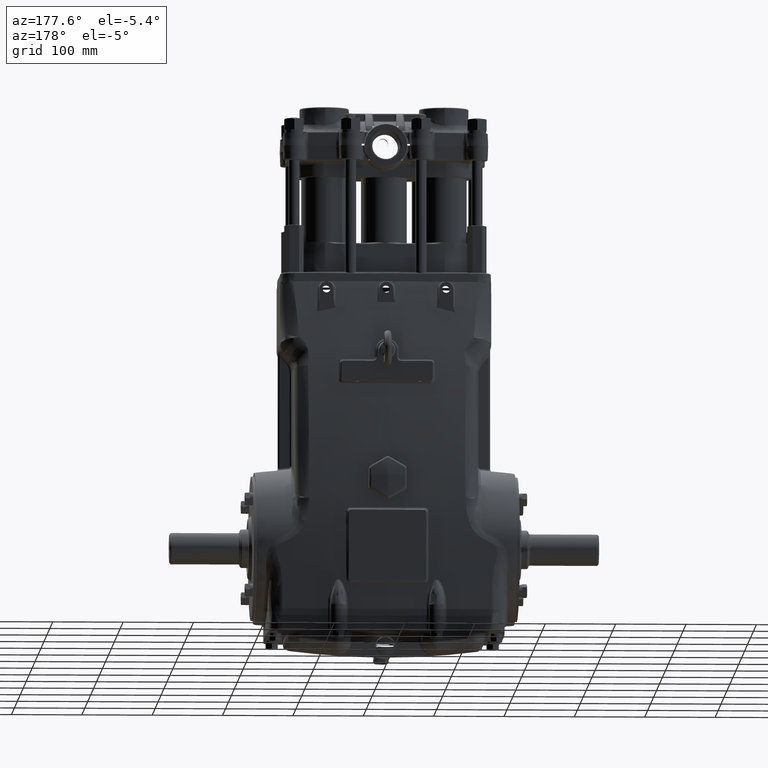
[diagram: clean part render]
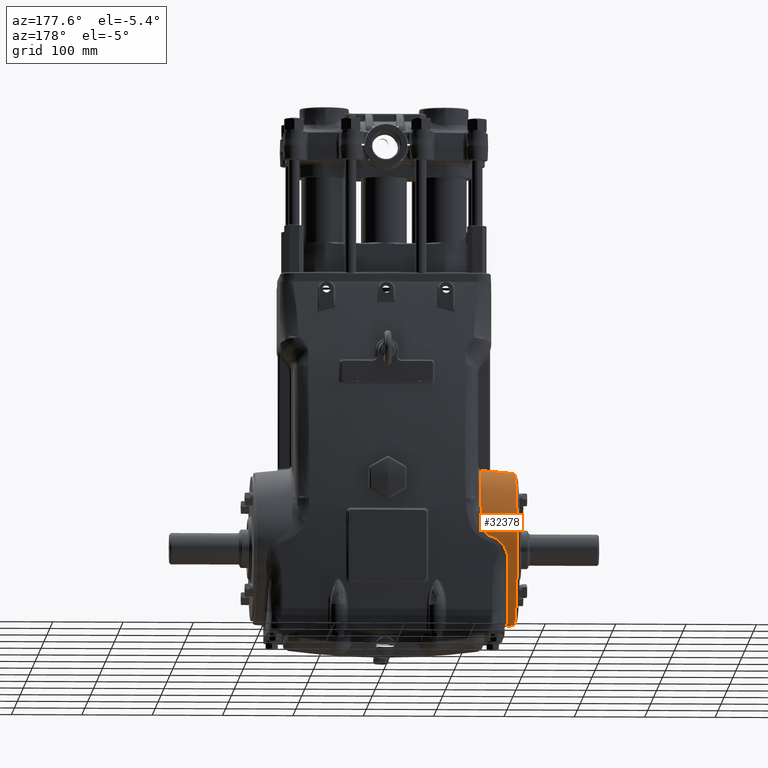
[diagram: same view with one face highlighted and labeled with its STEP entity id]
A machine part, auxiliary view. The second image highlights one B-rep face of the part: STEP entity #32378.
In plain terms, the highlighted toroidal blend (fillet) surface has major radius 1682.47 mm and minor (blend) radius 1800 mm.
Its self-contained STEP definition (entity closure, byte-faithful):
#96 = CARTESIAN_POINT ( 'NONE',  ( -6.741345395593511647, 3.917693780155291794, -1.786689214462458652 ) ) ;
#136 = CARTESIAN_POINT ( 'NONE',  ( -5.261296828898087696, 3.900253370087860549, 2.104232054173381883 ) ) ;
#139 = VERTEX_POINT ( 'NONE', #95118 ) ;
#399 = CARTESIAN_POINT ( 'NONE',  ( -6.802928794494061293, 2.971965742435886071, -3.107775869320155593 ) ) ;
#460 = EDGE_CURVE ( 'NONE', #79566, #37249, #105377, .T. ) ;
#1250 = EDGE_CURVE ( 'NONE', #76479, #39413, #63874, .T. ) ;
#1544 = EDGE_CURVE ( 'NONE', #13216, #79566, #74947, .T. ) ;
#2035 = CARTESIAN_POINT ( 'NONE',  ( -5.588538660406701553, 4.382084385623080891, 0.4637048666681909403 ) ) ;
#2651 = CARTESIAN_POINT ( 'NONE',  ( -6.808755107570218179, 2.840646696900647861, -3.227320686454763443 ) ) ;
#3227 = CARTESIAN_POINT ( 'NONE',  ( -6.840394268254330612, 1.986708291382229596, -3.809402521445148793 ) ) ;
#3786 = CARTESIAN_POINT ( 'NONE',  ( -6.815687386985334051, 2.681522705761757663, -3.366223835221867411 ) ) ;
#3798 = CARTESIAN_POINT ( 'NONE',  ( -5.942635652879795671, 0.1919905828848696705, 4.373438795348450370 ) ) ;
#4304 = CARTESIAN_POINT ( 'NONE',  ( -5.280303821004435072, 4.326378264212825897, 0.9538605531171466811 ) ) ;
#4523 = CARTESIAN_POINT ( 'NONE',  ( -5.316003471564444638, 2.863135012389899536, 3.377342728480050127 ) ) ;
#4530 = CARTESIAN_POINT ( 'NONE',  ( -5.307508751736770947, 4.032365907415967676, 1.830081350043917032 ) ) ;
#4948 = CARTESIAN_POINT ( 'NONE',  ( -5.975618015182228682, 0.1682595571254062172, 4.371633694745659326 ) ) ;
#5262 = EDGE_LOOP ( 'NONE', ( #92596, #56155, #36539, #76598, #54295, #16949, #39816, #105467, #53395, #14919, #17673, #15793, #23272 ) ) ;
#5503 = CARTESIAN_POINT ( 'NONE',  ( -6.004155115772660700, 0.1387479897824969721, 4.370251600946961190 ) ) ;
#5507 = CARTESIAN_POINT ( 'NONE',  ( -6.870678561281842178, -6.656114456696553760E-06, -4.293398809821471929 ) ) ;
#5660 = AXIS2_PLACEMENT_3D ( 'NONE', #69511, #86224, #24009 ) ;
#5684 = CARTESIAN_POINT ( 'NONE',  ( -6.621719681679494762, 4.302354095691322655, -0.3578070606761745154 ) ) ;
#5858 = CARTESIAN_POINT ( 'NONE',  ( -5.282505151415223033, 3.545487945610408698, 2.656169669592979066 ) ) ;
#5891 = CARTESIAN_POINT ( 'NONE',  ( -6.771812179472230575, 4.157937463143076329, -1.109292408604076963 ) ) ;
#6210 = CARTESIAN_POINT ( 'NONE',  ( -5.377417702662543597, 0.4328440250592755500, 4.404250687754294624 ) ) ;
#7030 = CARTESIAN_POINT ( 'NONE',  ( -6.769494317236484981, 4.064795517057750551, -1.412378850890094295 ) ) ;
#7671 = DIRECTION ( 'NONE',  ( 1.000000000000000000, -0.000000000000000000, -0.000000000000000000 ) ) ;
#7964 = CARTESIAN_POINT ( 'NONE',  ( -6.320352504069026267, 4.344609826187327606, 0.04931440882356356165 ) ) ;
#8482 = CARTESIAN_POINT ( 'NONE',  ( -6.799597551736995094, 3.045065717738041133, -3.037207550370868425 ) ) ;
#8744 = CARTESIAN_POINT ( 'NONE',  ( -6.741552316830912162, 3.918775905409434213, -1.784267334145855255 ) ) ;
#8784 = CARTESIAN_POINT ( 'NONE',  ( -5.248186104969128074, 3.854023521318289180, 2.189869658242950656 ) ) ;
#8856 = DIRECTION ( 'NONE',  ( 1.000000000000000000, -0.000000000000000000, -0.000000000000000000 ) ) ;
#9755 = EDGE_CURVE ( 'NONE', #77648, #57521, #37989, .T. ) ;
#9860 = CARTESIAN_POINT ( 'NONE',  ( -6.756940503989800284, 3.996227088444455511, -1.599345310914938478 ) ) ;
#10725 = CARTESIAN_POINT ( 'NONE',  ( -6.808813497787673086, 2.839307107801701147, -3.228491450289571851 ) ) ;
#11240 = CARTESIAN_POINT ( 'NONE',  ( -5.283149141785619562, 4.329727526644165714, 0.9374360386467381900 ) ) ;
#11807 = CARTESIAN_POINT ( 'NONE',  ( -5.337403129142995084, 4.359404833277299218, 0.7650055225681851034 ) ) ;
#12375 = CARTESIAN_POINT ( 'NONE',  ( -5.516449093550831684, 4.381192923055855282, 0.5225526090988370509 ) ) ;
#12430 = CARTESIAN_POINT ( 'NONE',  ( -6.840321596742385601, 1.989090227306609782, -3.808167506888255449 ) ) ;
#12586 = CARTESIAN_POINT ( 'NONE',  ( -5.348683019767731750, 1.982253664410537519, 3.956300282451850503 ) ) ;
#13216 = VERTEX_POINT ( 'NONE', #81989 ) ;
#13389 = CARTESIAN_POINT ( 'NONE',  ( -6.766576386210667593, 4.045720627320530838, -1.467316562281252290 ) ) ;
#13722 = CARTESIAN_POINT ( 'NONE',  ( -5.303912266008377507, 3.137022981449896886, 3.141800864877679178 ) ) ;
#14299 = CARTESIAN_POINT ( 'NONE',  ( -5.353408809050346662, 1.821024108091647387, 4.033552500093756876 ) ) ;
#14531 = CARTESIAN_POINT ( 'NONE',  ( -6.762294523000383251, 4.022776607541421967, -1.530005080212360369 ) ) ;
#14919 = ORIENTED_EDGE ( 'NONE', *, *, #47915, .T. ) ;
#15093 = CARTESIAN_POINT ( 'NONE',  ( -6.769435883761134143, 4.064372363364833873, -1.413613015453675903 ) ) ;
#15135 = CARTESIAN_POINT ( 'NONE',  ( -5.244267370248267390, 3.830823330227710155, 2.230641275186715955 ) ) ;
#15446 = CARTESIAN_POINT ( 'NONE',  ( -6.620543918417818752, 4.302667728226239774, -0.3553585475959106788 ) ) ;
#15656 = CARTESIAN_POINT ( 'NONE',  ( -6.730461151574938405, 4.248999225761306953, -0.7039455839795005776 ) ) ;
#15764 = CARTESIAN_POINT ( 'NONE',  ( -5.694718666316944677, 0.2427046293452805592, 4.391591325424922587 ) ) ;
#15793 = ORIENTED_EDGE ( 'NONE', *, *, #91973, .T. ) ;
#16949 = ORIENTED_EDGE ( 'NONE', *, *, #1250, .T. ) ;
#17164 = CARTESIAN_POINT ( 'NONE',  ( -6.775298839652080574, 3.525166211466904898, -2.466938101616775292 ) ) ;
#17289 = EDGE_CURVE ( 'NONE', #33126, #66932, #77248, .T. ) ;
#17673 = ORIENTED_EDGE ( 'NONE', *, *, #38846, .T. ) ;
#17681 = CARTESIAN_POINT ( 'NONE',  ( -6.780474569964128229, 3.430225951759014791, -2.597042137997517930 ) ) ;
#17976 = CARTESIAN_POINT ( 'NONE',  ( -5.292905074866959936, 3.987815863200710353, 1.927913861091739234 ) ) ;
#18229 = CARTESIAN_POINT ( 'NONE',  ( -6.807807539690285736, 2.862328164259755336, -3.208253096050032394 ) ) ;
#18291 = CARTESIAN_POINT ( 'NONE',  ( -6.761142280871498045, 3.657529469068581562, -2.272160746277245735 ) ) ;
#18604 = EDGE_CURVE ( 'NONE', #34690, #22412, #101344, .T. ) ;
#19089 = CARTESIAN_POINT ( 'NONE',  ( -5.298939793779235963, 4.004695324892235675, 1.891693378475712395 ) ) ;
#19296 = CARTESIAN_POINT ( 'NONE',  ( -5.391722294753668265, 4.370942191345903893, 0.6690100046763898245 ) ) ;
#20436 = CARTESIAN_POINT ( 'NONE',  ( -5.285594249401850853, 4.270207403757702025, 1.178562820172817327 ) ) ;
#20484 = CARTESIAN_POINT ( 'NONE',  ( -6.840365213773861974, 1.987660837015395643, -3.808908769402320260 ) ) ;
#21040 = CARTESIAN_POINT ( 'NONE',  ( -6.808852441304065195, 2.838413506817393905, -3.229272106477580895 ) ) ;
#21214 = CARTESIAN_POINT ( 'NONE',  ( -5.364720556103168114, 1.356356683483980197, 4.213923273269347014 ) ) ;
#21564 = CARTESIAN_POINT ( 'NONE',  ( -5.420970511966699767, 4.375292211056715175, 0.6255213099475080973 ) ) ;
#21619 = CARTESIAN_POINT ( 'NONE',  ( -6.840219576493484333, 1.992429470634330624, -3.806433447973351480 ) ) ;
#22214 = B_SPLINE_CURVE_WITH_KNOTS ( 'NONE', 3,
 ( #43001, #104730, #25763, #17681, #96076, #79323, #35494, #87426, #8482, #399, #70675, #105853, #26896, #18229, #88558, #65406, #2651, #10725, #21040, #107540, #3786, #56170, #30815, #29131, #64264, #91380, #45824, #81579, #54482, #99461, #21619, #12430, #20484, #3227, #81020, #100607, #38321, #82154, #30245, #55599, #100021, #63703, #28581, #90807, #73507, #56730, #47521, #91939 ),
 .UNSPECIFIED., .F., .F.,
 ( 4, 2, 2, 2, 2, 2, 1, 1, 1, 1, 1, 2, 2, 2, 2, 2, 1, 1, 1, 1, 1, 2, 2, 2, 2, 2, 2, 2, 4 ),
 ( 0.000000000000000000, 0.03125434642921768452, 0.06250869285843536904, 0.09376303928765304663, 0.1093902125022618299, 0.1172037991095663118, 0.1211105924132185596, 0.1230639890650446766, 0.1240406873909577351, 0.1245290365539142435, 0.1247732111353924978, 0.1248952984261315763, 0.1250173857168706826, 0.1875260785752407566, 0.2187804250044258492, 0.2344075982190182983, 0.2422211848263145229, 0.2461279781299626768, 0.2480813747817867121, 0.2490580731076987298, 0.2495464222706547941, 0.2497905968521327569, 0.2500347714336107474, 0.3125434642919709405, 0.3750521571503311336, 0.4375608500086913266, 0.4688151964378713954, 0.4844423696524615131, 0.5000695428670515197 ),
 .UNSPECIFIED. ) ;
#22343 = DIRECTION ( 'NONE',  ( 0.000000000000000000, 0.000000000000000000, -1.000000000000000000 ) ) ;
#22359 = CARTESIAN_POINT ( 'NONE',  ( -5.350632992231451723, 1.916930647889112604, 3.988252961326844037 ) ) ;
#22412 = VERTEX_POINT ( 'NONE', #50056 ) ;
#22595 = CARTESIAN_POINT ( 'NONE',  ( -6.768301578327605483, 4.173608857470652467, -1.048499417060824168 ) ) ;
#22744 = CARTESIAN_POINT ( 'NONE',  ( -5.844200593887214801, 4.373259864796655627, 0.3322135055685635496 ) ) ;
#23272 = ORIENTED_EDGE ( 'NONE', *, *, #9755, .F. ) ;
#23745 = CARTESIAN_POINT ( 'NONE',  ( -6.763767006059699050, 4.190022076853849420, -0.9828676802541481683 ) ) ;
#23783 = CARTESIAN_POINT ( 'NONE',  ( -5.248966763422030724, 3.757830948074233124, 2.350867164115806762 ) ) ;
#24009 = DIRECTION ( 'NONE',  ( 0.000000000000000000, 1.224646799147353207E-16, 1.000000000000000000 ) ) ;
#24355 = CARTESIAN_POINT ( 'NONE',  ( -5.262340482072752401, 3.903419070440504957, 2.098184948024498730 ) ) ;
#24423 = FACE_OUTER_BOUND ( 'NONE', #5262, .T. ) ;
#25244 = CARTESIAN_POINT ( 'NONE',  ( -6.253900897241322809, 4.349597401975684896, 0.1086126833368276090 ) ) ;
#25454 = CARTESIAN_POINT ( 'NONE',  ( -6.741304003182745141, 3.917477216550578678, -1.787173529835899499 ) ) ;
#25763 = CARTESIAN_POINT ( 'NONE',  ( -6.777065526427530351, 3.493068600585554684, -2.512442743415792545 ) ) ;
#25818 = CARTESIAN_POINT ( 'NONE',  ( -6.675732707737997984, 4.287845143048916619, -0.4708184384520080479 ) ) ;
#26587 = CARTESIAN_POINT ( 'NONE',  ( -6.741289634994213742, 3.917402036700062151, -1.787341636244538234 ) ) ;
#26896 = CARTESIAN_POINT ( 'NONE',  ( -6.806738637011758186, 2.886655789550812479, -3.186590986991063801 ) ) ;
#27202 = CARTESIAN_POINT ( 'NONE',  ( -5.284239344929683391, 3.965186074144665174, 1.975326668870498903 ) ) ;
#27270 = DIRECTION ( 'NONE',  ( 0.000000000000000000, 0.000000000000000000, -1.000000000000000000 ) ) ;
#27962 = CARTESIAN_POINT ( 'NONE',  ( -5.589810699308505271, 4.382081984448547018, 0.4627701894666591542 ) ) ;
#28294 = EDGE_CURVE ( 'NONE', #77648, #34690, #106835, .T. ) ;
#28581 = CARTESIAN_POINT ( 'NONE',  ( -6.869890758678623754, 0.3194442901638384624, -4.282333702572814538 ) ) ;
#29078 = CARTESIAN_POINT ( 'NONE',  ( -5.573955626785884299, 4.382076247098126487, 0.4746297706762793722 ) ) ;
#29131 = CARTESIAN_POINT ( 'NONE',  ( -6.832033164446256635, 2.244276316579895347, -3.665341119609889287 ) ) ;
#29631 = CARTESIAN_POINT ( 'NONE',  ( -5.372798435690252283, 4.367762196757864146, 0.6987752988529659648 ) ) ;
#29692 = CARTESIAN_POINT ( 'NONE',  ( -5.985768041256679162, 0.1589629006822737278, 4.371125094206695039 ) ) ;
#30245 = CARTESIAN_POINT ( 'NONE',  ( -6.860594391852364637, 1.147408376280117714, -4.141825173020047934 ) ) ;
#30415 = CARTESIAN_POINT ( 'NONE',  ( -5.318341447129883548, 2.809251828563186226, 3.422009701186613295 ) ) ;
#30421 = CARTESIAN_POINT ( 'NONE',  ( -5.305074006109198770, 4.024108979596778823, 1.848678937366626807 ) ) ;
#30815 = CARTESIAN_POINT ( 'NONE',  ( -6.829598149745276459, 2.313787734814085173, -3.622339465245685730 ) ) ;
#30978 = CARTESIAN_POINT ( 'NONE',  ( -5.293242435950135771, 3.354855560971719441, 2.909289479409654433 ) ) ;
#31393 = CARTESIAN_POINT ( 'NONE',  ( -6.052903952729665527, 0.01359502265603423563, 4.368279199505267663 ) ) ;
#31775 = CARTESIAN_POINT ( 'NONE',  ( -6.769575550329589575, 4.065387223735250188, -1.410651506330780736 ) ) ;
#32356 = CARTESIAN_POINT ( 'NONE',  ( -6.768448550204643865, 4.172961754324505002, -1.051014193066587943 ) ) ;
#32378 = ADVANCED_FACE ( 'NONE', ( #24423 ), #65404, .T. ) ;
#32682 = CARTESIAN_POINT ( 'NONE',  ( -5.349139269623838899, 1.967170095378494077, 3.963789496042168015 ) ) ;
#33126 = VERTEX_POINT ( 'NONE', #46499 ) ;
#33274 = CARTESIAN_POINT ( 'NONE',  ( -6.551118807502451347, 4.317803168248316226, -0.2289998349564659197 ) ) ;
#34100 = CARTESIAN_POINT ( 'NONE',  ( -5.242952442699188254, 3.817034596398841462, 2.254355011008818632 ) ) ;
#34302 = CARTESIAN_POINT ( 'NONE',  ( -7.283464566929135131, 0.000000000000000000, -4.251968503937008315 ) ) ;
#34416 = CARTESIAN_POINT ( 'NONE',  ( -6.619343310566139671, 4.302986275873823097, -0.3528672802395221852 ) ) ;
#34690 = VERTEX_POINT ( 'NONE', #102661 ) ;
#35198 = CARTESIAN_POINT ( 'NONE',  ( -6.731844506270565631, 3.780018725156358173, -2.065150532387148630 ) ) ;
#35233 = CARTESIAN_POINT ( 'NONE',  ( -5.263139523889131866, 3.905814407568594770, 2.093595139299669672 ) ) ;
#35494 = CARTESIAN_POINT ( 'NONE',  ( -6.791672193843124816, 3.212435705296017296, -2.862417719782662573 ) ) ;
#35754 = CARTESIAN_POINT ( 'NONE',  ( -6.756993317447060221, 3.996482444427015501, -1.598693524026935986 ) ) ;
#36539 = ORIENTED_EDGE ( 'NONE', *, *, #88688, .T. ) ;
#37249 = VERTEX_POINT ( 'NONE', #65860 ) ;
#37989 = CIRCLE ( 'NONE', #100647, 70.86614173228348079 ) ;
#38321 = CARTESIAN_POINT ( 'NONE',  ( -6.849879752958772272, 1.652454870743574222, -3.968894505587415189 ) ) ;
#38846 = EDGE_CURVE ( 'NONE', #72581, #139, #74845, .T. ) ;
#39056 = CARTESIAN_POINT ( 'NONE',  ( -5.321743657187412602, 2.729109274237084826, 3.486198299843995319 ) ) ;
#39413 = VERTEX_POINT ( 'NONE', #65335 ) ;
#39643 = CARTESIAN_POINT ( 'NONE',  ( -5.348710775072707868, 1.981339025191396930, 3.956756068956048367 ) ) ;
#39816 = ORIENTED_EDGE ( 'NONE', *, *, #67877, .T. ) ;
#40213 = CARTESIAN_POINT ( 'NONE',  ( -5.349928557825389674, 1.940876585611409633, 3.976732436526543957 ) ) ;
#40453 = CARTESIAN_POINT ( 'NONE',  ( -6.757437996161018035, 4.206693793731754560, -0.9121048421317448085 ) ) ;
#40635 = CARTESIAN_POINT ( 'NONE',  ( -6.051605994522383014, 0.02739995905994667760, 4.368324985300228391 ) ) ;
#40789 = CARTESIAN_POINT ( 'NONE',  ( -5.326098933507185329, 2.623249295861524999, 3.566957212986657577 ) ) ;
#41365 = CARTESIAN_POINT ( 'NONE',  ( -6.341991325746445973, 4.342861810390718169, 0.02869611786115344385 ) ) ;
#41616 = CARTESIAN_POINT ( 'NONE',  ( -5.257686558385059605, 3.888845851256947928, 2.125806444597980516 ) ) ;
#42131 = CARTESIAN_POINT ( 'NONE',  ( -6.760396871435570887, 4.013192091627747260, -1.555395925453541883 ) ) ;
#42388 = CARTESIAN_POINT ( 'NONE',  ( -5.278636169576489401, 3.616670915829576227, 2.561636118181738642 ) ) ;
#42496 = CARTESIAN_POINT ( 'NONE',  ( -6.384245775733763395, 4.339123862413091004, -0.01423732362462047478 ) ) ;
#42809 = CARTESIAN_POINT ( 'NONE',  ( -5.852955202024553216, 0.2223837610835557310, 4.379492462996530833 ) ) ;
#43001 = CARTESIAN_POINT ( 'NONE',  ( -6.775298839652080574, 3.525166211466904898, -2.466938101616775292 ) ) ;
#43060 = CARTESIAN_POINT ( 'NONE',  ( -6.610805881005466844, 4.305187476328840468, -0.3354889295348211786 ) ) ;
#43641 = CARTESIAN_POINT ( 'NONE',  ( -6.771717025254980094, 3.591320074118342198, -2.373006615443680190 ) ) ;
#43874 = CARTESIAN_POINT ( 'NONE',  ( -5.259284045908207084, 3.894019281435741497, 2.116077687915528749 ) ) ;
#44405 = CARTESIAN_POINT ( 'NONE',  ( -6.745880271143935403, 3.941204931887184237, -1.733279529465279856 ) ) ;
#44955 = CARTESIAN_POINT ( 'NONE',  ( -6.754337289088024221, 3.983646325943574151, -1.631440057628351870 ) ) ;
#45824 = CARTESIAN_POINT ( 'NONE',  ( -6.838006273253371958, 2.063439131129813919, -3.768699837292086574 ) ) ;
#46341 = CARTESIAN_POINT ( 'NONE',  ( -5.383672305419601400, 4.369659534192135375, 0.6813605577104896449 ) ) ;
#46499 = CARTESIAN_POINT ( 'NONE',  ( -5.852955202024553216, 0.2223837610835557310, 4.379492462996530833 ) ) ;
#46913 = CARTESIAN_POINT ( 'NONE',  ( -5.388482327096583369, 4.370434226900105301, 0.6739439621246038348 ) ) ;
#47471 = CARTESIAN_POINT ( 'NONE',  ( -5.296839395312952448, 4.342744893710668741, 0.8711129500325555108 ) ) ;
#47521 = CARTESIAN_POINT ( 'NONE',  ( -6.870678560480570241, 0.03946898244759781960, -4.293398871397075212 ) ) ;
#47526 = B_SPLINE_CURVE_WITH_KNOTS ( 'NONE', 3,
 ( #93251, #6210, #76518, #91538, #48256, #21214, #101340, #111683, #14299, #22359, #40213, #32682, #100188, #56332, #57460, #39643, #12586, #92676, #47680, #82876, #74816, #49398, #84584, #40789, #39056, #74236, #30415, #65574, #100771, #56890, #92106, #83440, #4523, #109973, #13722, #30978, #60881 ),
 .UNSPECIFIED., .F., .F.,
 ( 4, 2, 2, 2, 2, 1, 1, 1, 2, 2, 1, 1, 2, 2, 2, 2, 1, 2, 2, 1, 2, 4 ),
 ( 0.5369542162515159589, 0.5948349392200824592, 0.6527156621886489596, 0.7105963851572153489, 0.7395367466414985991, 0.7467718370125694394, 0.7485806096053371217, 0.7494849959017211294, 0.7499371890499129112, 0.7501632856240089131, 0.7503893821981049150, 0.7540069273836396135, 0.7684771081257782965, 0.8263578310943335836, 0.8552981925786110606, 0.8697683733207497436, 0.8733859185062843311, 0.8742903048026680057, 0.8751946910990515693, 0.8770034636918190296, 0.8842385540628885376, 1.000000000000000000 ),
 .UNSPECIFIED. ) ;
#47680 = CARTESIAN_POINT ( 'NONE',  ( -5.347309043715868349, 2.027271654177139837, 3.933721050206997472 ) ) ;
#47915 = EDGE_CURVE ( 'NONE', #37249, #72581, #68130, .T. ) ;
#48104 = CARTESIAN_POINT ( 'NONE',  ( -6.042801323709146466, 0.06713833945439574846, 4.368647268629675118 ) ) ;
#48256 = CARTESIAN_POINT ( 'NONE',  ( -5.370383742810595606, 1.046050589810642917, 4.301026043939541132 ) ) ;
#48487 = CARTESIAN_POINT ( 'NONE',  ( -6.763448403233986106, 4.028781226171679997, -1.513790374348554124 ) ) ;
#49079 = CARTESIAN_POINT ( 'NONE',  ( -6.767035628838081962, 4.178852556380872940, -1.027952159832389745 ) ) ;
#49398 = CARTESIAN_POINT ( 'NONE',  ( -5.336626999087065393, 2.348913278788762327, 3.754920809047069596 ) ) ;
#49426 = CARTESIAN_POINT ( 'NONE',  ( -6.207552973131511997, 4.352583597161454598, 0.1447357131319575441 ) ) ;
#49626 = CARTESIAN_POINT ( 'NONE',  ( -6.758177726059598989, 4.002233707833773302, -1.583945079646628118 ) ) ;
#49935 = CARTESIAN_POINT ( 'NONE',  ( -6.743573777071479647, 3.722444327216362314, -2.163829234821386116 ) ) ;
#49979 = CARTESIAN_POINT ( 'NONE',  ( -6.730461151574938405, 4.248999225761306953, -0.7039455839795005776 ) ) ;
#50056 = CARTESIAN_POINT ( 'NONE',  ( -6.052903952729693948, 4.600810365741836405E-13, 4.368279199505273880 ) ) ;
#50186 = CARTESIAN_POINT ( 'NONE',  ( -6.757224334273590927, 3.997600467841394778, -1.595836823069499699 ) ) ;
#50225 = CARTESIAN_POINT ( 'NONE',  ( -5.242512744523860846, 3.807178527593177098, 2.271051693749728706 ) ) ;
#51081 = DIRECTION ( 'NONE',  ( -0.000000000000000000, -1.000000000000000000, -0.000000000000000000 ) ) ;
#51136 = CARTESIAN_POINT ( 'NONE',  ( -6.404821986470988548, 4.337138142782724692, -0.03650708140862820444 ) ) ;
#51383 = CARTESIAN_POINT ( 'NONE',  ( -5.262871624053651942, 3.905013964632335632, 2.095130267958065229 ) ) ;
#52527 = CARTESIAN_POINT ( 'NONE',  ( -5.244633499452865166, 3.833573743669095091, 2.225855874927783251 ) ) ;
#53395 = ORIENTED_EDGE ( 'NONE', *, *, #460, .T. ) ;
#53639 = CARTESIAN_POINT ( 'NONE',  ( -5.267467298501859574, 3.918682815731893587, 2.068883055293978757 ) ) ;
#54295 = ORIENTED_EDGE ( 'NONE', *, *, #62715, .T. ) ;
#54425 = CARTESIAN_POINT ( 'NONE',  ( -5.393389796952694937, 4.371196509828155108, 0.6665023697316324602 ) ) ;
#54482 = CARTESIAN_POINT ( 'NONE',  ( -6.839600534081924366, 2.012576479609212488, -3.795903966534813545 ) ) ;
#55546 = CARTESIAN_POINT ( 'NONE',  ( -5.273224816417230620, 4.310634035089514704, 1.025088697865087717 ) ) ;
#55599 = CARTESIAN_POINT ( 'NONE',  ( -6.865636515242908189, 0.8125191857021329955, -4.219817622896401943 ) ) ;
#56155 = ORIENTED_EDGE ( 'NONE', *, *, #18604, .T. ) ;
#56170 = CARTESIAN_POINT ( 'NONE',  ( -6.821714542258235703, 2.529003135753563836, -3.479638702680607487 ) ) ;
#56332 = CARTESIAN_POINT ( 'NONE',  ( -5.348778242450486609, 1.979114112903264999, 3.957863890037868426 ) ) ;
#56679 = CARTESIAN_POINT ( 'NONE',  ( -5.844200593887214801, 4.373259864796655627, 0.3322135055685635496 ) ) ;
#56730 = CARTESIAN_POINT ( 'NONE',  ( -6.870639176231179590, 0.07904535497030702740, -4.292859870274861933 ) ) ;
#56741 = CARTESIAN_POINT ( 'NONE',  ( -6.012333718027439211, 0.1279316583837702970, 4.369888668490934158 ) ) ;
#56890 = CARTESIAN_POINT ( 'NONE',  ( -5.317181569677019048, 2.836079042668587125, 3.399904558641998253 ) ) ;
#57127 = CARTESIAN_POINT ( 'NONE',  ( -6.739992677024365442, 4.237896397011211569, -0.7653983043598342473 ) ) ;
#57310 = CARTESIAN_POINT ( 'NONE',  ( -6.026676285087908980, 0.1048928087818100374, 4.369279320037974479 ) ) ;
#57460 = CARTESIAN_POINT ( 'NONE',  ( -5.348723936082902419, 1.980905198242506549, 3.956972186507165201 ) ) ;
#57521 = VERTEX_POINT ( 'NONE', #5507 ) ;
#58287 = CARTESIAN_POINT ( 'NONE',  ( -6.769459286080976135, 4.064541660579116922, -1.413119325141123372 ) ) ;
#58531 = CARTESIAN_POINT ( 'NONE',  ( -5.248966763422030724, 3.757830948074233124, 2.350867164115806762 ) ) ;
#58849 = CARTESIAN_POINT ( 'NONE',  ( -6.772382238893148276, 4.090347900581008389, -1.335779946106611771 ) ) ;
#58890 = CARTESIAN_POINT ( 'NONE',  ( -5.242545504874570383, 3.800718885372541322, 2.281837140636877148 ) ) ;
#59095 = CARTESIAN_POINT ( 'NONE',  ( -5.267461827274273034, 3.687901525019733562, 2.460058464711490700 ) ) ;
#59200 = CARTESIAN_POINT ( 'NONE',  ( -5.844200593887214801, 4.373259864796655627, 0.3322135055685635496 ) ) ;
#59411 = CARTESIAN_POINT ( 'NONE',  ( -6.765396429967291070, 4.184912090542567853, -1.003805964763387681 ) ) ;
#59450 = CARTESIAN_POINT ( 'NONE',  ( -5.263377270644373773, 3.906522576501227917, 2.092235844973470815 ) ) ;
#60023 = CARTESIAN_POINT ( 'NONE',  ( -5.244460703833366821, 3.832303120906024319, 2.228068607464256612 ) ) ;
#60585 = CARTESIAN_POINT ( 'NONE',  ( -5.244652735084488704, 3.833712391431940869, 2.225614217314928478 ) ) ;
#60881 = CARTESIAN_POINT ( 'NONE',  ( -5.282505151415223033, 3.545487945610408698, 2.656169669592979066 ) ) ;
#61732 = CARTESIAN_POINT ( 'NONE',  ( -5.273652003396961163, 3.936465659252416760, 2.033965294163480486 ) ) ;
#62715 = EDGE_CURVE ( 'NONE', #66932, #76479, #47526, .T. ) ;
#63068 = CARTESIAN_POINT ( 'NONE',  ( -5.751252640763874879, 4.378617943532280066, 0.3632216986680608661 ) ) ;
#63648 = CARTESIAN_POINT ( 'NONE',  ( -5.582429941404425833, 4.382089217027028916, 0.4682329201087146453 ) ) ;
#63703 = CARTESIAN_POINT ( 'NONE',  ( -6.869418068027572488, 0.4006782832699255503, -4.275578386623631211 ) ) ;
#63874 = B_SPLINE_CURVE_WITH_KNOTS ( 'NONE', 3,
 ( #68328, #42388, #59095, #58531 ),
 .UNSPECIFIED., .F., .F.,
 ( 4, 4 ),
 ( 0.000000000000000000, 1.000000000000000000 ),
 .UNSPECIFIED. ) ;
#64213 = CARTESIAN_POINT ( 'NONE',  ( -5.586091245523204130, 4.382087308956791105, 0.4655131843776765810 ) ) ;
#64264 = CARTESIAN_POINT ( 'NONE',  ( -6.835396413489062795, 2.144107697304149074, -3.723844512932292794 ) ) ;
#65335 = CARTESIAN_POINT ( 'NONE',  ( -5.248966763422030724, 3.757830948074233124, 2.350867164115806762 ) ) ;
#65353 = CARTESIAN_POINT ( 'NONE',  ( -5.543461482792225503, 4.381774431199116471, 0.4991144226447817855 ) ) ;
#65404 = TOROIDAL_SURFACE ( 'NONE', #78351, -66.23889039225161923, 70.86614173228348079 ) ;
#65406 = CARTESIAN_POINT ( 'NONE',  ( -6.808619039129498063, 2.843766721667159825, -3.224590452974523291 ) ) ;
#65574 = CARTESIAN_POINT ( 'NONE',  ( -5.317860500664731482, 2.820420393994004904, 3.412863916362127270 ) ) ;
#65860 = CARTESIAN_POINT ( 'NONE',  ( -6.730461151574938405, 4.248999225761306953, -0.7039455839795005776 ) ) ;
#66558 = CARTESIAN_POINT ( 'NONE',  ( -5.866550821144938865, 0.2206378003049896952, 4.378452933632264177 ) ) ;
#66932 = VERTEX_POINT ( 'NONE', #110123 ) ;
#66946 = CARTESIAN_POINT ( 'NONE',  ( -6.760208959206409851, 4.200121509320974056, -0.9406682735853975075 ) ) ;
#67128 = CARTESIAN_POINT ( 'NONE',  ( -6.032886401947552990, 0.09252842502211655606, 4.369031288985988581 ) ) ;
#67525 = CARTESIAN_POINT ( 'NONE',  ( -6.773772138244301466, 4.114627658310809899, -1.258838589642899741 ) ) ;
#67877 = EDGE_CURVE ( 'NONE', #39413, #13216, #75702, .T. ) ;
#68130 = B_SPLINE_CURVE_WITH_KNOTS ( 'NONE', 3,
 ( #15656, #57127, #111909, #40453, #66946, #23745, #59411, #49079, #75057, #92344, #22595, #111348, #32356, #5891, #94605, #67525, #85955, #58849, #84828, #84251, #110779, #94051, #31775, #7030, #58287, #15093, #101004, #93494, #13389, #48487, #14531, #42131, #77300, #49626, #83682, #50186, #85387, #35754, #9860, #44955, #97451, #44405, #96334, #113610, #69237, #8744, #80165, #96, #25454, #26587, #113029, #69802, #35198, #104986, #86529 ),
 .UNSPECIFIED., .F., .F.,
 ( 4, 2, 2, 1, 1, 1, 1, 2, 2, 2, 2, 1, 1, 1, 1, 1, 1, 2, 2, 2, 2, 1, 1, 1, 1, 2, 2, 1, 1, 1, 1, 1, 1, 1, 2, 2, 2, 4 ),
 ( 0.000000000000000000, 0.1250000000000690281, 0.1875000000001036948, 0.2187500000001209033, 0.2343750000001293687, 0.2421875000001336153, 0.2460937500001358635, 0.2480468750001369183, 0.2500000000001379452, 0.3750000000001782463, 0.4375000000001985634, 0.4687500000002087219, 0.4843750000002136624, 0.4921875000002160494, 0.4960937500002168821, 0.4980468750002174372, 0.4990234375002172706, 0.4995117187502171596, 0.5000000000002170486, 0.5625000000001983969, 0.5937500000001892930, 0.6093750000001848521, 0.6171875000001826317, 0.6210937500001815215, 0.6230468750001806333, 0.6240234375001800782, 0.6250000000001795231, 0.6875000000001316725, 0.7187500000001075806, 0.7343750000000957012, 0.7421875000000895950, 0.7460937500000867084, 0.7480468750000857092, 0.7490234375000853762, 0.7495117187500849321, 0.7500000000000844880, 0.8750000000000422995, 1.000000000000000000 ),
 .UNSPECIFIED. ) ;
#68328 = CARTESIAN_POINT ( 'NONE',  ( -5.282505151415223033, 3.545487945610408698, 2.656169669592979066 ) ) ;
#68436 = CARTESIAN_POINT ( 'NONE',  ( -6.588484174735714127, 4.310391490582410334, -0.2929946307045863119 ) ) ;
#69237 = CARTESIAN_POINT ( 'NONE',  ( -6.741841879374076640, 3.920288721656508102, -1.780875756933015364 ) ) ;
#69279 = CARTESIAN_POINT ( 'NONE',  ( -5.252872625366362236, 3.872306247272450097, 2.156548670923261746 ) ) ;
#69511 = CARTESIAN_POINT ( 'NONE',  ( 0.000000000000000000, -8.111924509794331596E-15, -66.23889039225161923 ) ) ;
#69802 = CARTESIAN_POINT ( 'NONE',  ( -6.731075874050413077, 3.845786436094507099, -1.940089358836883271 ) ) ;
#69846 = CARTESIAN_POINT ( 'NONE',  ( -5.243294501415173947, 3.822004268999713794, 2.245877039689916810 ) ) ;
#70435 = DIRECTION ( 'NONE',  ( 0.000000000000000000, 0.000000000000000000, -1.000000000000000000 ) ) ;
#70675 = CARTESIAN_POINT ( 'NONE',  ( -6.804073421081207051, 2.946577373546577228, -3.131729220780982370 ) ) ;
#71752 = CARTESIAN_POINT ( 'NONE',  ( -5.276939383879770240, 4.282973368194264552, 1.134739355254570148 ) ) ;
#72581 = VERTEX_POINT ( 'NONE', #49935 ) ;
#73450 = CARTESIAN_POINT ( 'NONE',  ( -5.499278809501565668, 4.380578043060483928, 0.5387947446701258913 ) ) ;
#73507 = CARTESIAN_POINT ( 'NONE',  ( -6.870481617017374809, 0.1587083133639893007, -4.290668653552193845 ) ) ;
#73678 = CARTESIAN_POINT ( 'NONE',  ( -5.286381927195647812, 3.970847330123644880, 1.963559984343791198 ) ) ;
#74021 = CARTESIAN_POINT ( 'NONE',  ( -5.285186039148469739, 4.331927617496773131, 0.9264882485798546785 ) ) ;
#74085 = CARTESIAN_POINT ( 'NONE',  ( -5.954093092697024581, 0.1847261199046904001, 4.372788691461827248 ) ) ;
#74236 = CARTESIAN_POINT ( 'NONE',  ( -5.320253112091736902, 2.764631715322722449, 3.458260649540429110 ) ) ;
#74241 = CARTESIAN_POINT ( 'NONE',  ( -5.285594249401850853, 4.270207403757702025, 1.178562820172817327 ) ) ;
#74816 = CARTESIAN_POINT ( 'NONE',  ( -5.341192896992198236, 2.218056876111431208, 3.832255767899654053 ) ) ;
#74845 = B_SPLINE_CURVE_WITH_KNOTS ( 'NONE', 3,
 ( #96130, #18291, #43641, #17164 ),
 .UNSPECIFIED., .F., .F.,
 ( 4, 4 ),
 ( 0.000000000000000000, 1.000000000000000000 ),
 .UNSPECIFIED. ) ;
#74947 = B_SPLINE_CURVE_WITH_KNOTS ( 'NONE', 3,
 ( #20436, #71752, #90202, #55546, #98277, #4304, #11240, #74021, #109181, #47471, #83221, #11807, #108058, #90756, #29631, #46341, #46913, #19296, #54425, #21564, #81524, #73450, #12375, #65353, #106916, #29078, #63648, #64213, #2035, #27962, #99410, #63068, #56679 ),
 .UNSPECIFIED., .F., .F.,
 ( 4, 2, 1, 1, 2, 2, 2, 2, 1, 1, 2, 2, 2, 2, 1, 1, 1, 2, 2, 4 ),
 ( 0.000000000000000000, 0.1249999999999981126, 0.1874999999999970024, 0.2187499999999964750, 0.2343749999999958367, 0.2499999999999951705, 0.3749999999999933942, 0.4374999999999930611, 0.4687499999999928946, 0.4843749999999918399, 0.4921874999999914513, 0.4999999999999910627, 0.6249999999999962252, 0.6874999999999987788, 0.7187500000000011102, 0.7343750000000022204, 0.7421875000000016653, 0.7460937500000014433, 0.7500000000000011102, 1.000000000000000000 ),
 .UNSPECIFIED. ) ;
#75057 = CARTESIAN_POINT ( 'NONE',  ( -6.767789779713689668, 4.175799252349782442, -1.039954902989683738 ) ) ;
#75702 = B_SPLINE_CURVE_WITH_KNOTS ( 'NONE', 3,
 ( #23783, #77916, #103890, #58890, #50225, #34100, #69846, #96371, #15135, #60023, #85430, #95236, #52527, #60585, #113648, #8784, #69279, #95806, #41616, #43874, #136, #24355, #51383, #35233, #111950, #86571, #59450, #53639, #61732, #100777, #27202, #73678, #89424, #17976, #19089, #30421, #4530, #83443, #80208, #108838, #106155, #74241 ),
 .UNSPECIFIED., .F., .F.,
 ( 4, 2, 2, 1, 1, 1, 1, 1, 2, 2, 2, 2, 1, 1, 1, 1, 1, 2, 2, 1, 1, 2, 2, 1, 1, 2, 2, 4 ),
 ( 0.000000000000000000, 0.06250000000002967071, 0.09375000000004482525, 0.1093750000000527356, 0.1171875000000567324, 0.1210937500000581341, 0.1230468750000593414, 0.1240234375000596884, 0.1245117187500601186, 0.1250000000000605627, 0.1875000000000285050, 0.2187500000000122957, 0.2343750000000047462, 0.2421875000000011102, 0.2460937499999997224, 0.2480468749999986400, 0.2490234374999983069, 0.2495117187499977518, 0.2499999999999971689, 0.3124999999999980016, 0.3437499999999985012, 0.3593749999999989453, 0.3749999999999994449, 0.4375000000000005551, 0.4687500000000012768, 0.4843750000000013323, 0.5000000000000014433, 1.000000000000000000 ),
 .UNSPECIFIED. ) ;
#75977 = CARTESIAN_POINT ( 'NONE',  ( -6.711837471056900206, 4.270350358756940246, -0.5859415881907783508 ) ) ;
#76479 = VERTEX_POINT ( 'NONE', #5858 ) ;
#76518 = CARTESIAN_POINT ( 'NONE',  ( -5.376195758438674588, 0.5846814597954916870, 4.386967348938215494 ) ) ;
#76598 = ORIENTED_EDGE ( 'NONE', *, *, #17289, .T. ) ;
#77248 = B_SPLINE_CURVE_WITH_KNOTS ( 'NONE', 3,
 ( #42809, #15764, #113715, #77978 ),
 .UNSPECIFIED., .F., .F.,
 ( 4, 4 ),
 ( 0.000000000000000000, 0.01219152699875865331 ),
 .UNSPECIFIED. ) ;
#77300 = CARTESIAN_POINT ( 'NONE',  ( -6.759406337842507995, 4.008255382656428445, -1.568358508936319673 ) ) ;
#77648 = VERTEX_POINT ( 'NONE', #34302 ) ;
#77668 = CARTESIAN_POINT ( 'NONE',  ( -6.501826301360216220, 4.325903990147358158, -0.1542486621217071252 ) ) ;
#77916 = CARTESIAN_POINT ( 'NONE',  ( -5.245642339940247645, 3.769495608764811934, 2.332686913865966716 ) ) ;
#77978 = CARTESIAN_POINT ( 'NONE',  ( -5.378145251033981999, 0.2833685163161507314, 4.413797716774163327 ) ) ;
#78351 = AXIS2_PLACEMENT_3D ( 'NONE', #113724, #8856, #27270 ) ;
#79323 = CARTESIAN_POINT ( 'NONE',  ( -6.788325353337392620, 3.279325299320034137, -2.784815268421764856 ) ) ;
#79566 = VERTEX_POINT ( 'NONE', #22744 ) ;
#80165 = CARTESIAN_POINT ( 'NONE',  ( -6.741407480259685059, 3.918018558523727268, -1.785962712027879151 ) ) ;
#80208 = CARTESIAN_POINT ( 'NONE',  ( -5.309848846166807412, 4.040563489385649021, 1.811481103398391745 ) ) ;
#81020 = CARTESIAN_POINT ( 'NONE',  ( -6.840405809242787960, 1.986329830571484711, -3.809598644791539535 ) ) ;
#81524 = CARTESIAN_POINT ( 'NONE',  ( -5.450282326388126819, 4.377995718695907534, 0.5893594153141633596 ) ) ;
#81579 = CARTESIAN_POINT ( 'NONE',  ( -6.838756688389260319, 2.039734290158878416, -3.781527614954303118 ) ) ;
#81989 = CARTESIAN_POINT ( 'NONE',  ( -5.285594249401850853, 4.270207403757702025, 1.178562820172817327 ) ) ;
#82154 = CARTESIAN_POINT ( 'NONE',  ( -6.857443049241540578, 1.316043221454957113, -4.091998039828441236 ) ) ;
#82876 = CARTESIAN_POINT ( 'NONE',  ( -5.346124597976516846, 2.064912227543260759, 3.914166423745982559 ) ) ;
#83221 = CARTESIAN_POINT ( 'NONE',  ( -5.310507951447737796, 4.350118208161932287, 0.8278992880745478233 ) ) ;
#83440 = CARTESIAN_POINT ( 'NONE',  ( -5.316830901077879368, 2.844142266633518101, 3.393199049530424283 ) ) ;
#83443 = CARTESIAN_POINT ( 'NONE',  ( -5.309088759708117777, 4.037856097775199160, 1.817646713734119013 ) ) ;
#83682 = CARTESIAN_POINT ( 'NONE',  ( -6.757545172774563014, 3.999156109930829928, -1.591853726320512585 ) ) ;
#84251 = CARTESIAN_POINT ( 'NONE',  ( -6.770641935956054347, 4.073583966077647389, -1.386528907407686750 ) ) ;
#84565 = CARTESIAN_POINT ( 'NONE',  ( 0.000000000000000000, 0.000000000000000000, 66.23889039225161923 ) ) ;
#84584 = CARTESIAN_POINT ( 'NONE',  ( -5.328847305792132616, 2.553623590785259356, 3.616723890217632409 ) ) ;
#84614 = CARTESIAN_POINT ( 'NONE',  ( -6.566621649927485649, 4.314945803846296890, -0.2543432843876154426 ) ) ;
#84828 = CARTESIAN_POINT ( 'NONE',  ( -6.771698656644168146, 4.082754129232601059, -1.359098820870692448 ) ) ;
#85387 = CARTESIAN_POINT ( 'NONE',  ( -6.757085854516708068, 3.996930138331993732, -1.597550023002217490 ) ) ;
#85430 = CARTESIAN_POINT ( 'NONE',  ( -5.244560712277280601, 3.833044069551832855, 2.226778692630568379 ) ) ;
#85955 = CARTESIAN_POINT ( 'NONE',  ( -6.773453167262990959, 4.105191161614807349, -1.289404908042284470 ) ) ;
#86224 = DIRECTION ( 'NONE',  ( 0.000000000000000000, 1.000000000000000000, -1.224646799147353207E-16 ) ) ;
#86529 = CARTESIAN_POINT ( 'NONE',  ( -6.743573777071479647, 3.722444327216362314, -2.163829234821386116 ) ) ;
#86571 = CARTESIAN_POINT ( 'NONE',  ( -5.263331823541505194, 3.906387361857602603, 2.092495464812334838 ) ) ;
#86592 = AXIS2_PLACEMENT_3D ( 'NONE', #95263, #7671, #70435 ) ;
#87426 = CARTESIAN_POINT ( 'NONE',  ( -6.797513572600633935, 3.089713179499423923, -2.991889467413307635 ) ) ;
#88558 = CARTESIAN_POINT ( 'NONE',  ( -6.808347603848400098, 2.849984066778369574, -3.219136226485530106 ) ) ;
#88688 = EDGE_CURVE ( 'NONE', #22412, #33126, #107873, .T. ) ;
#89424 = CARTESIAN_POINT ( 'NONE',  ( -5.287444557844598769, 3.973631560879715252, 1.957739829576463642 ) ) ;
#90202 = CARTESIAN_POINT ( 'NONE',  ( -5.272765119453159954, 4.294671517078303857, 1.090871455639194743 ) ) ;
#90756 = CARTESIAN_POINT ( 'NONE',  ( -5.364077161657232473, 4.365980379543003664, 0.7138887629814669733 ) ) ;
#90807 = CARTESIAN_POINT ( 'NONE',  ( -6.870363446019389642, 0.1987481499883633207, -4.289016165857647778 ) ) ;
#91380 = CARTESIAN_POINT ( 'NONE',  ( -6.836469284321066375, 2.111399492734926220, -3.742345555618845854 ) ) ;
#91538 = CARTESIAN_POINT ( 'NONE',  ( -5.372678778513612308, 0.8912846550643970245, 4.335356149824016292 ) ) ;
#91939 = CARTESIAN_POINT ( 'NONE',  ( -6.870678561281842178, -6.656114456696553760E-06, -4.293398809821471929 ) ) ;
#91973 = EDGE_CURVE ( 'NONE', #139, #57521, #22214, .T. ) ;
#92106 = CARTESIAN_POINT ( 'NONE',  ( -5.317079104654150790, 2.838436509109157235, 3.397946361326973364 ) ) ;
#92344 = CARTESIAN_POINT ( 'NONE',  ( -6.768150493054828409, 4.174266832425883145, -1.045938698326551508 ) ) ;
#92523 = CARTESIAN_POINT ( 'NONE',  ( -5.905650689245946161, 0.2097085009259656019, 4.375728740115142124 ) ) ;
#92596 = ORIENTED_EDGE ( 'NONE', *, *, #28294, .T. ) ;
#92676 = CARTESIAN_POINT ( 'NONE',  ( -5.348446938710133658, 1.990030413055779102, 3.952423268308220106 ) ) ;
#93251 = CARTESIAN_POINT ( 'NONE',  ( -5.378145251033981999, 0.2833685163161507314, 4.413797716774163327 ) ) ;
#93494 = CARTESIAN_POINT ( 'NONE',  ( -6.768216831531742805, 4.055583352738216796, -1.439229064326822405 ) ) ;
#94051 = CARTESIAN_POINT ( 'NONE',  ( -6.769735991437393352, 4.066568139013943650, -1.407198533330646706 ) ) ;
#94403 = CARTESIAN_POINT ( 'NONE',  ( -6.465252675416714112, 4.330677233706318852, -0.1061204420816250077 ) ) ;
#94605 = CARTESIAN_POINT ( 'NONE',  ( -6.773544112022548802, 4.141646054724304804, -1.168234331970789741 ) ) ;
#95118 = CARTESIAN_POINT ( 'NONE',  ( -6.775298839652080574, 3.525166211466904898, -2.466938101616775292 ) ) ;
#95236 = CARTESIAN_POINT ( 'NONE',  ( -5.244604289106917783, 3.833361844053158052, 2.226225104374722097 ) ) ;
#95263 = CARTESIAN_POINT ( 'NONE',  ( -7.283464566929135131, 0.000000000000000000, 0.000000000000000000 ) ) ;
#95806 = CARTESIAN_POINT ( 'NONE',  ( -5.254661925115526877, 3.878733991869267594, 2.144701619447984431 ) ) ;
#96076 = CARTESIAN_POINT ( 'NONE',  ( -6.782726541399413556, 3.388212141536842026, -2.652135448358194925 ) ) ;
#96130 = CARTESIAN_POINT ( 'NONE',  ( -6.743573777071479647, 3.722444327216362314, -2.163829234821386116 ) ) ;
#96334 = CARTESIAN_POINT ( 'NONE',  ( -6.743576157859211939, 3.929313013147602618, -1.760503375920248414 ) ) ;
#96371 = CARTESIAN_POINT ( 'NONE',  ( -5.243907436302966296, 3.827872221988119161, 2.235757982373484776 ) ) ;
#97451 = CARTESIAN_POINT ( 'NONE',  ( -6.750460184709365485, 3.964505888456363980, -1.678626856971670023 ) ) ;
#98277 = CARTESIAN_POINT ( 'NONE',  ( -5.275134929333561651, 4.318219069245144759, 0.9922020178987140948 ) ) ;
#99410 = CARTESIAN_POINT ( 'NONE',  ( -5.666848318806883000, 4.381887301497304321, 0.4064554440958221826 ) ) ;
#99461 = CARTESIAN_POINT ( 'NONE',  ( -6.840014547293499447, 1.999123925854992434, -3.802947502706054195 ) ) ;
#100021 = CARTESIAN_POINT ( 'NONE',  ( -6.867527296026248784, 0.6462647588696482925, -4.247987130590719751 ) ) ;
#100188 = CARTESIAN_POINT ( 'NONE',  ( -5.348886756933007192, 1.975531607082483987, 3.959645449869355627 ) ) ;
#100607 = CARTESIAN_POINT ( 'NONE',  ( -6.845467799281390597, 1.820230905437125291, -3.895613483620471662 ) ) ;
#100647 = AXIS2_PLACEMENT_3D ( 'NONE', #84565, #51081, #22343 ) ;
#100771 = CARTESIAN_POINT ( 'NONE',  ( -5.317375766404837556, 2.831604290223594944, 3.403613241288076185 ) ) ;
#100777 = CARTESIAN_POINT ( 'NONE',  ( -5.281037623360657740, 3.956654054073851512, 1.992957969869610269 ) ) ;
#101004 = CARTESIAN_POINT ( 'NONE',  ( -6.769421749566912894, 4.064270317606721861, -1.413910499027950296 ) ) ;
#101340 = CARTESIAN_POINT ( 'NONE',  ( -5.361352405095817453, 1.511896633074224283, 4.161148134568700030 ) ) ;
#101344 = CIRCLE ( 'NONE', #5660, 70.86614173228348079 ) ;
#102325 = CARTESIAN_POINT ( 'NONE',  ( -5.852955202024553216, 0.2223837610835557310, 4.379492462996530833 ) ) ;
#102661 = CARTESIAN_POINT ( 'NONE',  ( -7.283464566929135131, 5.318640310989227753E-16, 4.251968503937008315 ) ) ;
#103064 = CARTESIAN_POINT ( 'NONE',  ( -5.957382924865463281, 4.366735274621023066, 0.2944560318823968847 ) ) ;
#103890 = CARTESIAN_POINT ( 'NONE',  ( -5.243621463026883589, 3.781698086741348330, 2.313167623536243056 ) ) ;
#104218 = CARTESIAN_POINT ( 'NONE',  ( -6.599067502012762709, 4.308047242470295579, -0.3124793362141584652 ) ) ;
#104730 = CARTESIAN_POINT ( 'NONE',  ( -6.775908454324374830, 3.513906419419005278, -2.482925820440645914 ) ) ;
#104778 = CARTESIAN_POINT ( 'NONE',  ( -6.621342511771373118, 4.302454970519854704, -0.3570202155164368674 ) ) ;
#104986 = CARTESIAN_POINT ( 'NONE',  ( -6.735880659194125819, 3.749512198881971958, -2.118727624188548653 ) ) ;
#105377 = B_SPLINE_CURVE_WITH_KNOTS ( 'NONE', 3,
 ( #59200, #103064, #113404, #49426, #25244, #7964, #41365, #42496, #51136, #94403, #77668, #33274, #84614, #68436, #104218, #43060, #112824, #34416, #15446, #104778, #5684, #25818, #75977, #49979 ),
 .UNSPECIFIED., .F., .F.,
 ( 4, 2, 2, 2, 2, 2, 2, 1, 1, 1, 1, 2, 2, 4 ),
 ( 0.000000000000000000, 0.2500000000000135447, 0.3750000000000202616, 0.4375000000000236478, 0.5000000000000269784, 0.6250000000000337508, 0.6875000000000377476, 0.7187500000000403011, 0.7343750000000420775, 0.7421875000000429656, 0.7460937500000434097, 0.7480468750000435207, 0.7500000000000436318, 1.000000000000000000 ),
 .UNSPECIFIED. ) ;
#105467 = ORIENTED_EDGE ( 'NONE', *, *, #1544, .T. ) ;
#105853 = CARTESIAN_POINT ( 'NONE',  ( -6.805841678739165346, 2.906896106993255291, -3.168211737133659334 ) ) ;
#106155 = CARTESIAN_POINT ( 'NONE',  ( -5.326431479328123331, 4.207693638132040448, 1.393581442713163421 ) ) ;
#106835 = CIRCLE ( 'NONE', #86592, 4.251968503937008315 ) ;
#106916 = CARTESIAN_POINT ( 'NONE',  ( -5.557281917816395911, 4.381979943060656524, 0.4876265611982596448 ) ) ;
#107540 = CARTESIAN_POINT ( 'NONE',  ( -6.808875479052547419, 2.837884771402851669, -3.229733779674833549 ) ) ;
#107873 = B_SPLINE_CURVE_WITH_KNOTS ( 'NONE', 3,
 ( #110387, #31393, #40635, #109240, #48104, #67128, #57310, #56741, #5503, #29692, #4948, #74085, #3798, #109824, #92523, #110958, #66558, #102325 ),
 .UNSPECIFIED., .F., .F.,
 ( 4, 2, 2, 2, 2, 2, 2, 2, 4 ),
 ( 0.008343475335291278619, 0.009386853366007927649, 0.01043023139672457668, 0.01147360942744122571, 0.01251698745815787647, 0.01356036548887452550, 0.01460374351959117453, 0.01564712155030782703, 0.01669049958102447606 ),
 .UNSPECIFIED. ) ;
#108058 = CARTESIAN_POINT ( 'NONE',  ( -5.347433573422680553, 4.362204680769488085, 0.7443618582962509000 ) ) ;
#108838 = CARTESIAN_POINT ( 'NONE',  ( -5.334770050322139134, 4.131675336356437356, 1.602808141222971772 ) ) ;
#109181 = CARTESIAN_POINT ( 'NONE',  ( -5.286257156816882130, 4.332995312535274479, 0.9210971980903185363 ) ) ;
#109240 = CARTESIAN_POINT ( 'NONE',  ( -6.046545029794906156, 0.05411255389600158616, 4.368509364489893798 ) ) ;
#109824 = CARTESIAN_POINT ( 'NONE',  ( -5.918305894830617753, 0.2045449740507357672, 4.374915057761754156 ) ) ;
#109973 = CARTESIAN_POINT ( 'NONE',  ( -5.315175620754486907, 2.881994989004004637, 3.361327104350121164 ) ) ;
#110123 = CARTESIAN_POINT ( 'NONE',  ( -5.378145251033981999, 0.2833685163161507314, 4.413797716774163327 ) ) ;
#110387 = CARTESIAN_POINT ( 'NONE',  ( -6.052903952729693948, 4.600810365741836405E-13, 4.368279199505273880 ) ) ;
#110779 = CARTESIAN_POINT ( 'NONE',  ( -6.770048773343926740, 4.068919996041335807, -1.400299462548422857 ) ) ;
#110958 = CARTESIAN_POINT ( 'NONE',  ( -5.879804742476926194, 0.2177384704305661001, 4.377495817030776060 ) ) ;
#111348 = CARTESIAN_POINT ( 'NONE',  ( -6.768401522696791517, 4.173169936976057315, -1.050205726373635295 ) ) ;
#111683 = CARTESIAN_POINT ( 'NONE',  ( -5.355495315954963864, 1.743906767156554904, 4.067287100936169963 ) ) ;
#111909 = CARTESIAN_POINT ( 'NONE',  ( -6.747928271118892596, 4.225857446775213688, -0.8251183580692466046 ) ) ;
#111950 = CARTESIAN_POINT ( 'NONE',  ( -5.263254837142198994, 3.906158094873571685, 2.092935557287312065 ) ) ;
#112824 = CARTESIAN_POINT ( 'NONE',  ( -6.616522867406279040, 4.303725446259924148, -0.3470629666952376735 ) ) ;
#113029 = CARTESIAN_POINT ( 'NONE',  ( -6.734343394735288868, 3.881049183395346880, -1.868599789919093812 ) ) ;
#113404 = CARTESIAN_POINT ( 'NONE',  ( -6.062365715765698049, 4.361265618365728791, 0.2428058885497732522 ) ) ;
#113610 = CARTESIAN_POINT ( 'NONE',  ( -6.742420562063641931, 3.923306841695883396, -1.774089322232780264 ) ) ;
#113648 = CARTESIAN_POINT ( 'NONE',  ( -5.245970264149045548, 3.843171540991997759, 2.209124435864727509 ) ) ;
#113715 = CARTESIAN_POINT ( 'NONE',  ( -5.536433248766212678, 0.2630354300012630597, 4.403024973988600266 ) ) ;
#113724 = CARTESIAN_POINT ( 'NONE',  ( 0.000000000000000000, 0.000000000000000000, 0.000000000000000000 ) ) ;